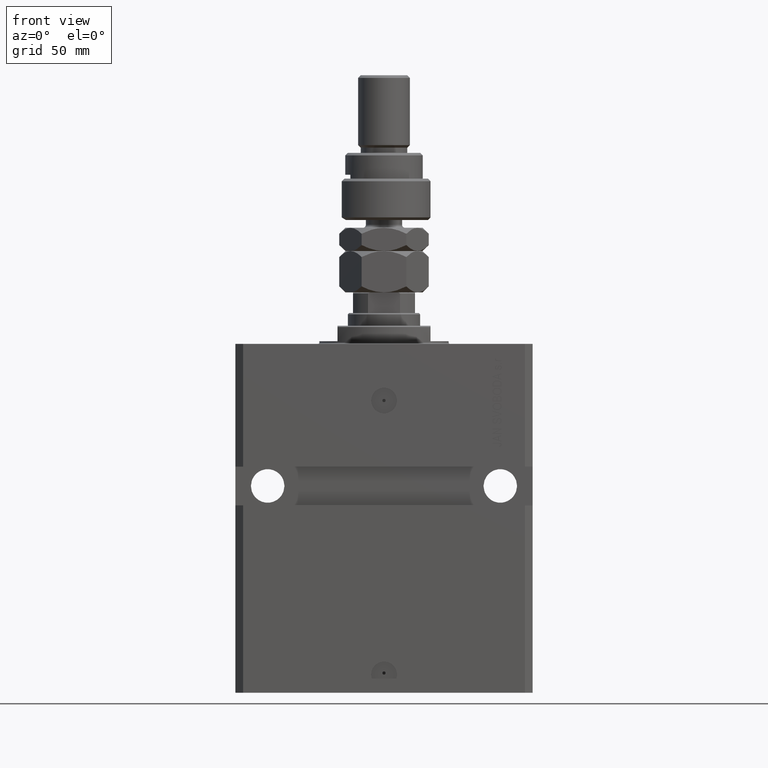
[diagram: clean part render]
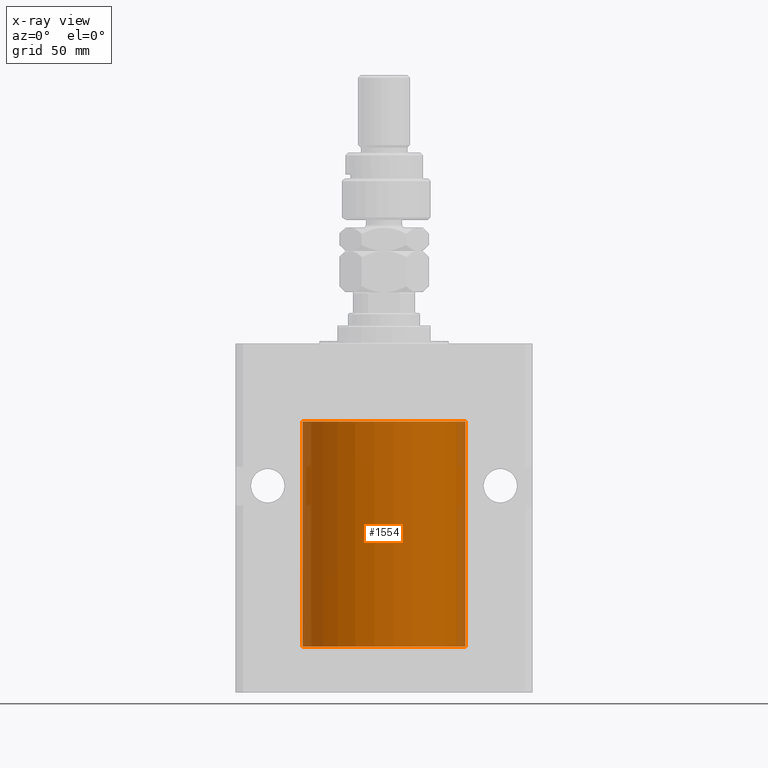
[diagram: x-ray — body ghosted, one internal face saturated and labeled with its STEP entity id]
A machine part, front view, then the same camera in x-ray: the body is ghosted and one INTERNAL B-rep face — a face not visible from any outside direction — is saturated and labeled: STEP entity #1554.
In plain terms, the highlighted cylindrical surface (partial cylindrical patch) has radius 31.5 mm, axis along (0, 0, 1).
Its self-contained STEP definition (entity closure, byte-faithful):
#183 = DIRECTION ( 'NONE',  ( 0.000000000000000000, 0.000000000000000000, 1.000000000000000000 ) ) ;
#1554 = ADVANCED_FACE ( 'NONE', ( #6716 ), #22599, .F. ) ;
#1762 = VERTEX_POINT ( 'NONE', #32704 ) ;
#2039 = CARTESIAN_POINT ( 'NONE',  ( 0.000000000000000000, 0.000000000000000000, -117.0999999999999943 ) ) ;
#2274 = CARTESIAN_POINT ( 'NONE',  ( -31.49528704891774211, -0.5569519313505083558, -114.3270938121662539 ) ) ;
#2385 = EDGE_CURVE ( 'NONE', #8214, #28364, #5813, .T. ) ;
#2658 = DIRECTION ( 'NONE',  ( -0.000000000000000000, -0.000000000000000000, 1.000000000000000000 ) ) ;
#2816 = DIRECTION ( 'NONE',  ( 1.000000000000000000, 0.000000000000000000, 0.000000000000000000 ) ) ;
#2914 = VERTEX_POINT ( 'NONE', #26618 ) ;
#3355 = DIRECTION ( 'NONE',  ( 1.000000000000000000, 0.000000000000000000, 0.000000000000000000 ) ) ;
#4016 = DIRECTION ( 'NONE',  ( -0.000000000000000000, -0.000000000000000000, 1.000000000000000000 ) ) ;
#4360 = EDGE_CURVE ( 'NONE', #35759, #28364, #48843, .T. ) ;
#5123 = DIRECTION ( 'NONE',  ( -0.000000000000000000, -0.000000000000000000, 1.000000000000000000 ) ) ;
#5342 = CARTESIAN_POINT ( 'NONE',  ( 31.50000000000000000, 0.000000000000000000, -117.0999999999999943 ) ) ;
#5389 = CARTESIAN_POINT ( 'NONE',  ( 31.50000000000000000, 0.000000000000000000, -117.0999999999999943 ) ) ;
#5813 = CIRCLE ( 'NONE', #42397, 31.50000000000000000 ) ;
#6562 = CARTESIAN_POINT ( 'NONE',  ( -31.50000000000000000, 3.857637417314162689E-15, -117.0999999999999943 ) ) ;
#6716 = FACE_OUTER_BOUND ( 'NONE', #33033, .T. ) ;
#7559 = VECTOR ( 'NONE', #5123, 1000.000000000000000 ) ;
#8214 = VERTEX_POINT ( 'NONE', #32042 ) ;
#9154 = B_SPLINE_CURVE_WITH_KNOTS ( 'NONE', 3,
 ( #18398, #11129, #18921, #2274, #30125, #46260, #38187, #30900, #46002, #41832 ),
 .UNSPECIFIED., .F., .F.,
 ( 4, 2, 2, 2, 4 ),
 ( 0.001954083649707762538, 0.002442494148669354520, 0.002930904647630946935, 0.003419315146592538917, 0.003907725645554130899 ),
 .UNSPECIFIED. ) ;
#9525 = CARTESIAN_POINT ( 'NONE',  ( 0.000000000000000000, 0.000000000000000000, -30.10000000000000142 ) ) ;
#10061 = CARTESIAN_POINT ( 'NONE',  ( -31.50000000000006395, 3.480981129463732167E-13, -114.6250000000032401 ) ) ;
#10384 = ORIENTED_EDGE ( 'NONE', *, *, #39617, .T. ) ;
#10594 = EDGE_CURVE ( 'NONE', #2914, #35759, #34264, .T. ) ;
#11129 = CARTESIAN_POINT ( 'NONE',  ( -31.50000000000000000, -0.1631292369235416984, -114.6250000000001563 ) ) ;
#15760 = AXIS2_PLACEMENT_3D ( 'NONE', #2039, #38477, #2816 ) ;
#16308 = VECTOR ( 'NONE', #2658, 1000.000000000000000 ) ;
#18398 = CARTESIAN_POINT ( 'NONE',  ( -31.50000000000006395, 3.480981129463732167E-13, -114.6250000000032401 ) ) ;
#18921 = CARTESIAN_POINT ( 'NONE',  ( -31.49852099238383119, -0.3263081977449447946, -114.5574125724066619 ) ) ;
#22599 = CYLINDRICAL_SURFACE ( 'NONE', #15760, 31.50000000000000000 ) ;
#22698 = EDGE_CURVE ( 'NONE', #2914, #51401, #30256, .T. ) ;
#23283 = EDGE_CURVE ( 'NONE', #51401, #1762, #9154, .T. ) ;
#25392 = DIRECTION ( 'NONE',  ( 1.000000000000000000, 0.000000000000000000, 0.000000000000000000 ) ) ;
#26618 = CARTESIAN_POINT ( 'NONE',  ( -31.50000000000000000, 3.857637417314162689E-15, -117.0999999999999943 ) ) ;
#27707 = LINE ( 'NONE', #28204, #45109 ) ;
#28204 = CARTESIAN_POINT ( 'NONE',  ( -31.50000000000000000, 3.857637417314162689E-15, -117.0999999999999943 ) ) ;
#28364 = VERTEX_POINT ( 'NONE', #46759 ) ;
#29833 = ORIENTED_EDGE ( 'NONE', *, *, #10594, .F. ) ;
#30125 = CARTESIAN_POINT ( 'NONE',  ( -31.49380174372966223, -0.6248613812773637921, -114.1653655539884369 ) ) ;
#30256 = LINE ( 'NONE', #6562, #16308 ) ;
#30900 = CARTESIAN_POINT ( 'NONE',  ( -31.49851430197701063, -0.3269482044720602998, -113.4429011246694188 ) ) ;
#31779 = ORIENTED_EDGE ( 'NONE', *, *, #4360, .F. ) ;
#32042 = CARTESIAN_POINT ( 'NONE',  ( -31.50000000000000000, 3.857637417314162689E-15, -30.10000000000000142 ) ) ;
#32704 = CARTESIAN_POINT ( 'NONE',  ( -31.50000000000000000, -2.862469004324082213E-15, -113.3750000000000000 ) ) ;
#33033 = EDGE_LOOP ( 'NONE', ( #29833, #40514, #45434, #10384, #36052, #31779 ) ) ;
#34264 = CIRCLE ( 'NONE', #35093, 31.50000000000000000 ) ;
#35093 = AXIS2_PLACEMENT_3D ( 'NONE', #35849, #183, #3355 ) ;
#35759 = VERTEX_POINT ( 'NONE', #5342 ) ;
#35849 = CARTESIAN_POINT ( 'NONE',  ( 0.000000000000000000, 0.000000000000000000, -117.0999999999999943 ) ) ;
#36052 = ORIENTED_EDGE ( 'NONE', *, *, #2385, .T. ) ;
#36592 = DIRECTION ( 'NONE',  ( 0.000000000000000000, 0.000000000000000000, 1.000000000000000000 ) ) ;
#38187 = CARTESIAN_POINT ( 'NONE',  ( -31.49527619204366857, -0.5575625051463252158, -113.6738430774043564 ) ) ;
#38477 = DIRECTION ( 'NONE',  ( -0.000000000000000000, -0.000000000000000000, 1.000000000000000000 ) ) ;
#39617 = EDGE_CURVE ( 'NONE', #1762, #8214, #27707, .T. ) ;
#40514 = ORIENTED_EDGE ( 'NONE', *, *, #22698, .T. ) ;
#41832 = CARTESIAN_POINT ( 'NONE',  ( -31.50000000000000000, -2.862469004324082213E-15, -113.3750000000000000 ) ) ;
#42397 = AXIS2_PLACEMENT_3D ( 'NONE', #9525, #36592, #25392 ) ;
#45109 = VECTOR ( 'NONE', #4016, 1000.000000000000000 ) ;
#45434 = ORIENTED_EDGE ( 'NONE', *, *, #23283, .T. ) ;
#46002 = CARTESIAN_POINT ( 'NONE',  ( -31.49999999999999289, -0.1651478413229920950, -113.3749999999999858 ) ) ;
#46260 = CARTESIAN_POINT ( 'NONE',  ( -31.49379625064871391, -0.6251381781549172345, -113.8356839311847466 ) ) ;
#46759 = CARTESIAN_POINT ( 'NONE',  ( 31.50000000000000000, 0.000000000000000000, -30.10000000000000142 ) ) ;
#48843 = LINE ( 'NONE', #5389, #7559 ) ;
#51401 = VERTEX_POINT ( 'NONE', #10061 ) ;